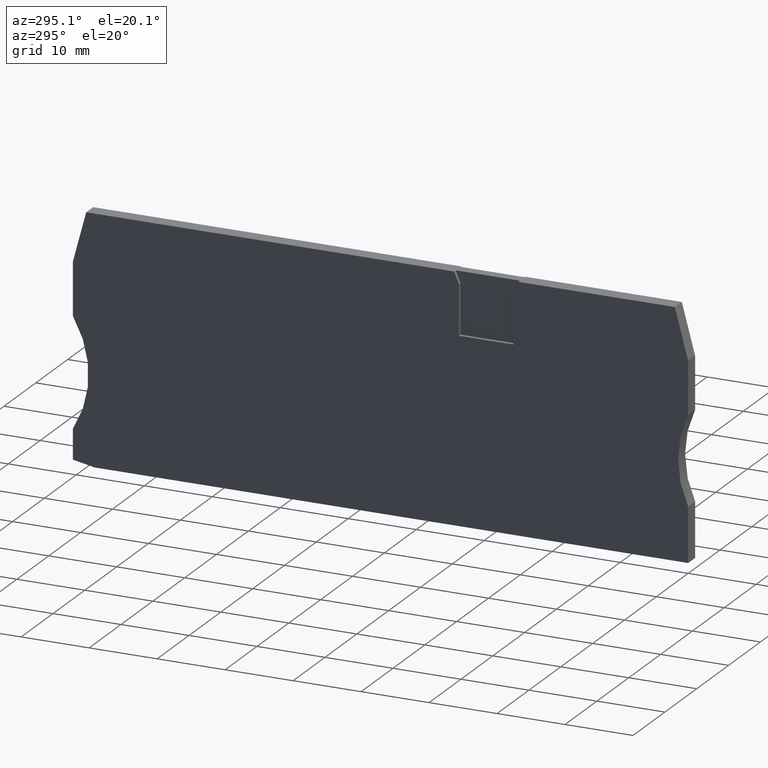
[diagram: clean part render]
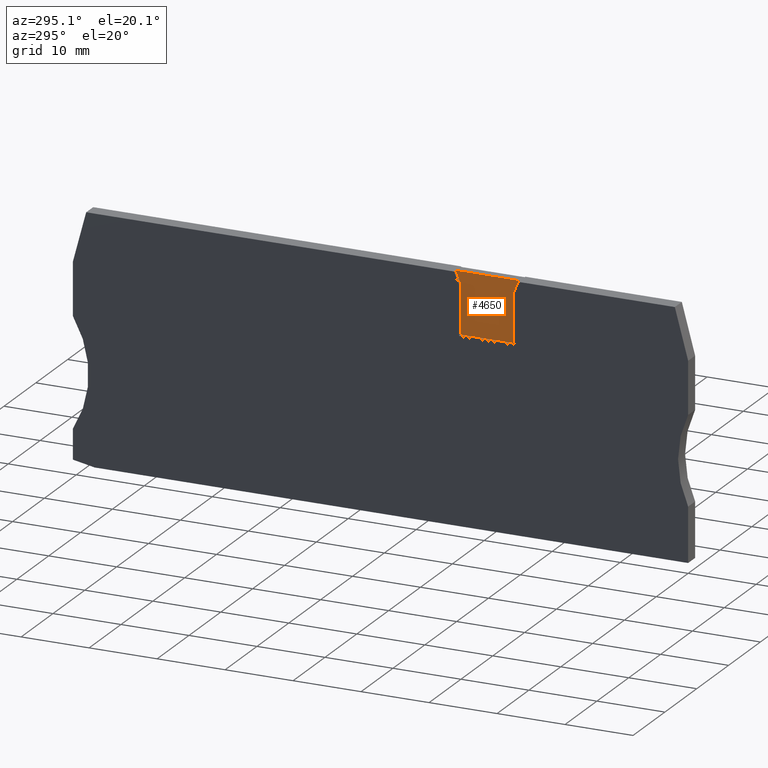
[diagram: same view with one face highlighted and labeled with its STEP entity id]
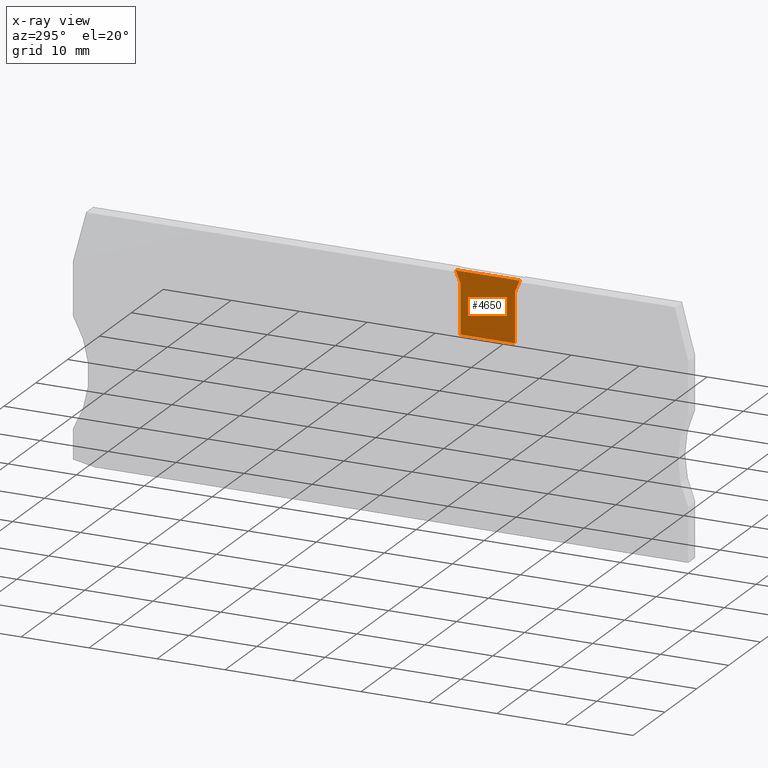
[diagram: x-ray of the same camera — body ghosted, the highlighted face saturated]
A machine part, auxiliary view. The second image highlights one B-rep face of the part: STEP entity #4650.
The next image is the same camera in x-ray: the body ghosted, the highlighted face saturated — about 0% of this face is hidden behind the body in this view.
In plain terms, the highlighted planar face has unit normal (1, 0, 0).
Its self-contained STEP definition (entity closure, byte-faithful):
#1940=CARTESIAN_POINT('',(-7.0678327783245,-22.363129,54.17));
#1950=DIRECTION('',(0.,1.,0.));
#1960=VECTOR('',#1950,1.);
#1970=LINE('',#1940,#1960);
#1980=CARTESIAN_POINT('',(-7.0678327783245,-11.2000000000016,54.17));
#1990=VERTEX_POINT('',#1980);
#2000=CARTESIAN_POINT('',(-7.06783277832451,-3.90000000000332,54.17));
#2010=VERTEX_POINT('',#2000);
#2020=EDGE_CURVE('',#1990,#2010,#1970,.T.);
#4040=CARTESIAN_POINT('',(-7.78633249760616,-2.19999999999908,54.17));
#4050=VERTEX_POINT('',#4040);
#4100=CARTESIAN_POINT('',(0.735551341396395,-22.363129,54.17));
#4110=DIRECTION('',(-0.389303997086196,0.92110933002153,0.));
#4120=VECTOR('',#4110,1.);
#4130=LINE('',#4100,#4120);
#4140=EDGE_CURVE('',#2010,#4050,#4130,.T.);
#4260=CARTESIAN_POINT('',(-3.06783277831202,-6.7000000000003,54.17));
#4270=DIRECTION('',(0.,0.,1.));
#4280=DIRECTION('',(1.,0.,0.));
#4290=AXIS2_PLACEMENT_3D('',#4260,#4270,#4280);
#4300=PLANE('',#4290);
#4310=CARTESIAN_POINT('',(31.631009,-11.2000000000016,54.17));
#4320=DIRECTION('',(-1.,0.,0.));
#4330=VECTOR('',#4320,1.);
#4340=LINE('',#4310,#4330);
#4350=CARTESIAN_POINT('',(0.932167221675279,-11.2000000000016,54.17));
#4360=VERTEX_POINT('',#4350);
#4370=EDGE_CURVE('',#4360,#1990,#4340,.T.);
#4380=ORIENTED_EDGE('',*,*,#4370,.T.);
#4390=CARTESIAN_POINT('',(0.932167221675279,-22.363129,54.17));
#4400=DIRECTION('',(0.,-1.,0.));
#4410=VECTOR('',#4400,1.);
#4420=LINE('',#4390,#4410);
#4430=CARTESIAN_POINT('',(0.932167221675279,-3.90000000000325,54.17));
#4440=VERTEX_POINT('',#4430);
#4450=EDGE_CURVE('',#4440,#4360,#4420,.T.);
#4460=ORIENTED_EDGE('',*,*,#4450,.T.);
#4470=CARTESIAN_POINT('',(-6.87121689832903,-22.363129,54.17));
#4480=DIRECTION('',(-0.389303997098191,-0.92110933001646,0.));
#4490=VECTOR('',#4480,1.);
#4500=LINE('',#4470,#4490);
#4510=CARTESIAN_POINT('',(1.65066694098248,-2.19999999999897,54.17));
#4520=VERTEX_POINT('',#4510);
#4530=EDGE_CURVE('',#4520,#4440,#4500,.T.);
#4540=ORIENTED_EDGE('',*,*,#4530,.T.);
#4550=CARTESIAN_POINT('',(31.631009,-2.19999999999897,54.17));
#4560=DIRECTION('',(1.,0.,0.));
#4570=VECTOR('',#4560,1.);
#4580=LINE('',#4550,#4570);
#4590=EDGE_CURVE('',#4050,#4520,#4580,.T.);
#4600=ORIENTED_EDGE('',*,*,#4590,.T.);
#4610=ORIENTED_EDGE('',*,*,#4140,.T.);
#4620=ORIENTED_EDGE('',*,*,#2020,.T.);
#4630=EDGE_LOOP('',(#4620,#4610,#4600,#4540,#4460,#4380));
#4640=FACE_OUTER_BOUND('',#4630,.T.);
#4650=ADVANCED_FACE('',(#4640),#4300,.F.);